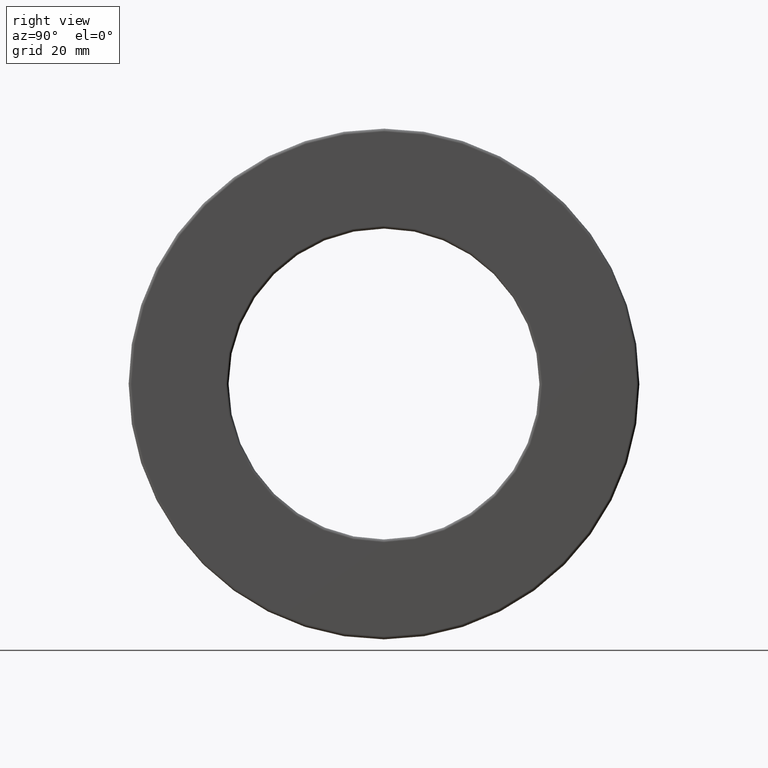
[diagram: clean part render]
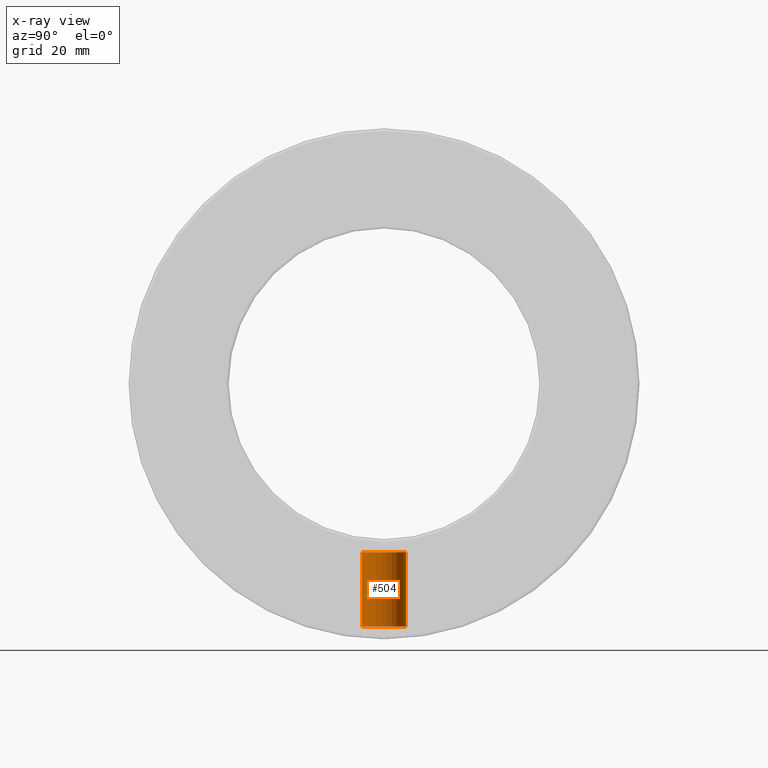
[diagram: x-ray — body ghosted, one internal face saturated and labeled with its STEP entity id]
A machine part, right view, then the same camera in x-ray: the body is ghosted and one INTERNAL B-rep face — a face not visible from any outside direction — is saturated and labeled: STEP entity #504.
In plain terms, the highlighted cylindrical surface (bore or boss wall) has radius 3.9624 mm, axis along (0, -0, -1).
Its self-contained STEP definition (entity closure, byte-faithful):
#34 = EDGE_CURVE ( 'NONE', #1278, #1278, #1130, .T. ) ;
#49 = AXIS2_PLACEMENT_3D ( 'NONE', #1138, #341, #464 ) ;
#89 = CARTESIAN_POINT ( 'NONE',  ( 0.0000000000000000000, -5.959522210237873800E-015, -1.706875000000000100 ) ) ;
#296 = AXIS2_PLACEMENT_3D ( 'NONE', #89, #758, #314 ) ;
#314 = DIRECTION ( 'NONE',  ( 0.0000000000000000000, 1.000000000000000000, -3.502369222646494500E-015 ) ) ;
#341 = DIRECTION ( 'NONE',  ( 0.0000000000000000000, -3.491481338843133400E-015, -1.000000000000000000 ) ) ;
#381 = ORIENTED_EDGE ( 'NONE', *, *, #34, .T. ) ;
#401 = CYLINDRICAL_SURFACE ( 'NONE', #49, 0.1559999999999999200 ) ;
#453 = EDGE_LOOP ( 'NONE', ( #1299 ) ) ;
#464 = DIRECTION ( 'NONE',  ( 0.0000000000000000000, 1.000000000000000000, -3.491481338843133400E-015 ) ) ;
#504 = ADVANCED_FACE ( 'NONE', ( #1127, #524 ), #401, .T. ) ;
#524 = FACE_OUTER_BOUND ( 'NONE', #453, .T. ) ;
#758 = DIRECTION ( 'NONE',  ( 0.0000000000000000000, -3.491481338843133400E-015, -1.000000000000000000 ) ) ;
#791 = CARTESIAN_POINT ( 'NONE',  ( 0.0000000000000000000, 0.1559999999999958600, -1.183750000000000700 ) ) ;
#909 = EDGE_CURVE ( 'NONE', #924, #924, #1203, .T. ) ;
#924 = VERTEX_POINT ( 'NONE', #1450 ) ;
#1127 = FACE_OUTER_BOUND ( 'NONE', #1434, .T. ) ;
#1130 = CIRCLE ( 'NONE', #1317, 0.1560000000000000000 ) ;
#1138 = CARTESIAN_POINT ( 'NONE',  ( 0.0000000000000000000, 0.0000000000000000000, 0.0000000000000000000 ) ) ;
#1182 = DIRECTION ( 'NONE',  ( 0.0000000000000000000, -3.491481338843133400E-015, -1.000000000000000000 ) ) ;
#1203 = CIRCLE ( 'NONE', #296, 0.1559999999999998600 ) ;
#1278 = VERTEX_POINT ( 'NONE', #791 ) ;
#1281 = CARTESIAN_POINT ( 'NONE',  ( 0.0000000000000000000, -4.133041034855559200E-015, -1.183750000000000100 ) ) ;
#1292 = DIRECTION ( 'NONE',  ( 0.0000000000000000000, 1.000000000000000000, -3.502369222646491400E-015 ) ) ;
#1299 = ORIENTED_EDGE ( 'NONE', *, *, #909, .F. ) ;
#1317 = AXIS2_PLACEMENT_3D ( 'NONE', #1281, #1182, #1292 ) ;
#1434 = EDGE_LOOP ( 'NONE', ( #381 ) ) ;
#1450 = CARTESIAN_POINT ( 'NONE',  ( 0.0000000000000000000, 0.1559999999999938700, -1.706875000000000600 ) ) ;